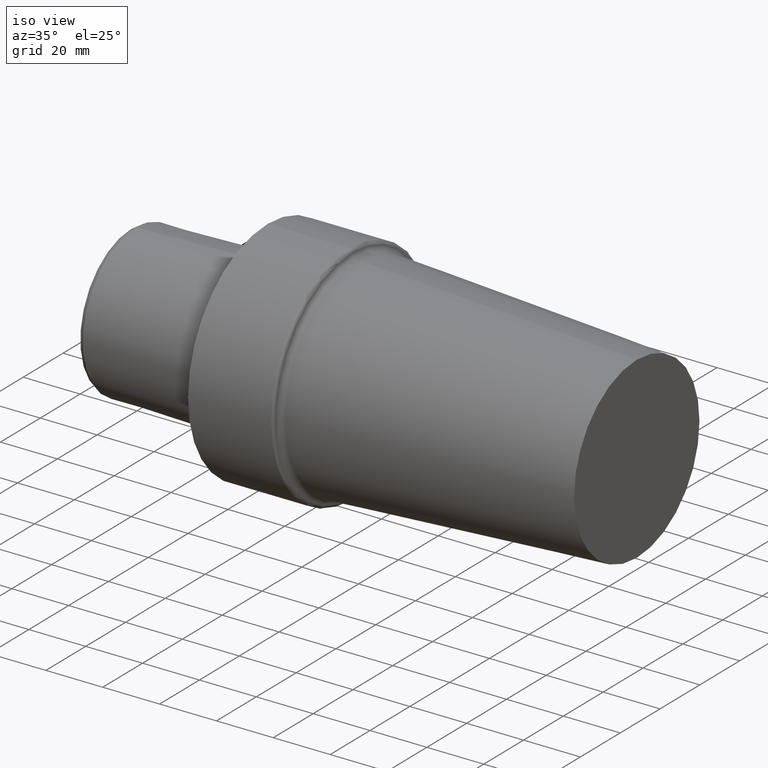
[diagram: clean part render]
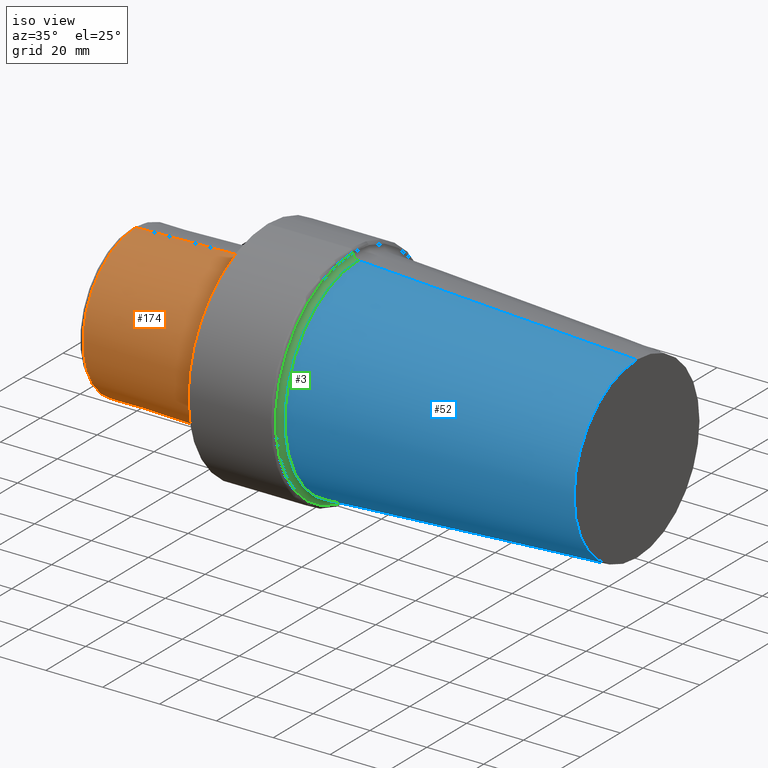
[diagram: same view with three faces highlighted in distinct colors, each labeled with its STEP entity id]
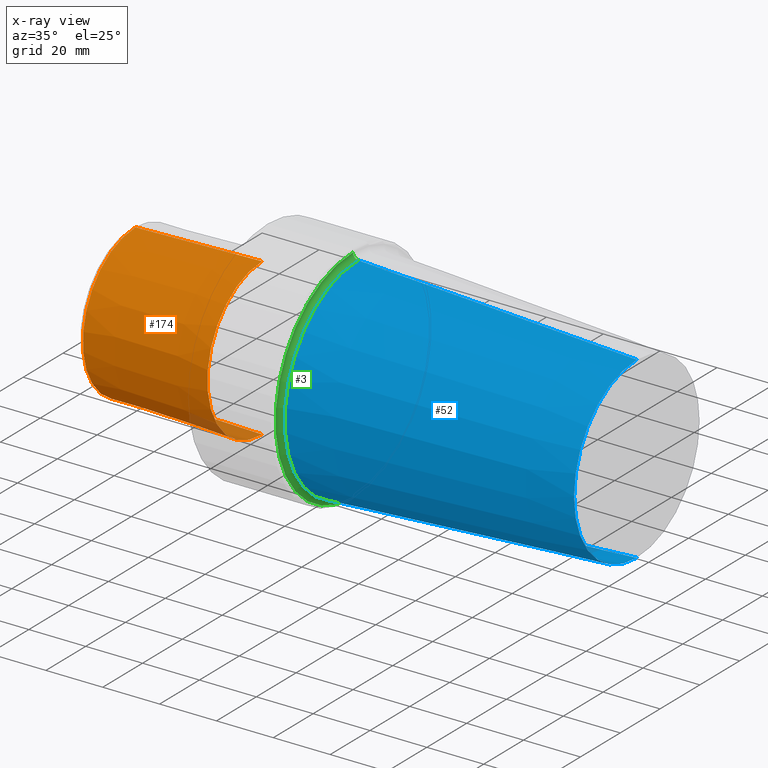
[diagram: x-ray of the same camera — body ghosted, the three highlighted faces saturated]
A machine part, iso view with three faces highlighted in distinct colors.
The next image is the same camera in x-ray (body ghosted, the three faces saturated) — at least one of them is partly hidden behind the body in this view.
Their STEP definitions:

[orange] entity #174 — the highlighted conical surface has half-angle 1.432 deg.
#8 = VERTEX_POINT ( 'NONE', #512 ) ;
#9 = CIRCLE ( 'NONE', #496, 26.41260027772084129 ) ;
#12 = EDGE_CURVE ( 'NONE', #8, #216, #371, .T. ) ;
#15 = CARTESIAN_POINT ( 'NONE',  ( -46.49999994987858543, 0.000000000000000000, -26.41260027772084129 ) ) ;
#17 = ORIENTED_EDGE ( 'NONE', *, *, #504, .F. ) ;
#30 = DIRECTION ( 'NONE',  ( -1.000000000000000000, 0.000000000000000000, 0.000000000000000000 ) ) ;
#43 = ORIENTED_EDGE ( 'NONE', *, *, #12, .T. ) ;
#67 = DIRECTION ( 'NONE',  ( 0.000000000000000000, 0.000000000000000000, 1.000000000000000000 ) ) ;
#75 = ORIENTED_EDGE ( 'NONE', *, *, #461, .F. ) ;
#130 = CARTESIAN_POINT ( 'NONE',  ( -1.940694415329066391, 0.000000000000000000, 27.52650806658465399 ) ) ;
#143 = CARTESIAN_POINT ( 'NONE',  ( -1.940694415329066391, 0.000000000000000000, 0.000000000000000000 ) ) ;
#168 = DIRECTION ( 'NONE',  ( 0.000000000000000000, 0.000000000000000000, -1.000000000000000000 ) ) ;
#174 = ADVANCED_FACE ( 'NONE', ( #292 ), #348, .T. ) ;
#175 = CARTESIAN_POINT ( 'NONE',  ( -1.940694415329066391, 0.000000000000000000, 0.000000000000000000 ) ) ;
#182 = CARTESIAN_POINT ( 'NONE',  ( -46.49999994987858543, 3.302817819135798828E-15, 26.41260027772084129 ) ) ;
#183 = VECTOR ( 'NONE', #479, 1000.000000000000114 ) ;
#203 = AXIS2_PLACEMENT_3D ( 'NONE', #175, #527, #168 ) ;
#216 = VERTEX_POINT ( 'NONE', #130 ) ;
#273 = LINE ( 'NONE', #363, #344 ) ;
#275 = DIRECTION ( 'NONE',  ( 0.9996876883616916398, 0.000000000000000000, -0.02499051296106793996 ) ) ;
#283 = LINE ( 'NONE', #401, #183 ) ;
#292 = FACE_OUTER_BOUND ( 'NONE', #342, .T. ) ;
#311 = AXIS2_PLACEMENT_3D ( 'NONE', #143, #314, #473 ) ;
#314 = DIRECTION ( 'NONE',  ( -1.000000000000000000, 0.000000000000000000, 0.000000000000000000 ) ) ;
#342 = EDGE_LOOP ( 'NONE', ( #75, #17, #531, #43 ) ) ;
#344 = VECTOR ( 'NONE', #275, 1000.000000000000114 ) ;
#346 = VERTEX_POINT ( 'NONE', #15 ) ;
#348 = CONICAL_SURFACE ( 'NONE', #203, 27.52650806658465399, 0.02499311489546479637 ) ;
#363 = CARTESIAN_POINT ( 'NONE',  ( -1.940694415329066391, 0.000000000000000000, -27.52650806658465399 ) ) ;
#371 = CIRCLE ( 'NONE', #311, 27.52650806658465399 ) ;
#374 = VERTEX_POINT ( 'NONE', #182 ) ;
#401 = CARTESIAN_POINT ( 'NONE',  ( -1.940694415329066391, 3.371024999544667893E-15, 27.52650806658465399 ) ) ;
#461 = EDGE_CURVE ( 'NONE', #374, #216, #283, .T. ) ;
#473 = DIRECTION ( 'NONE',  ( 0.000000000000000000, 0.000000000000000000, 1.000000000000000000 ) ) ;
#479 = DIRECTION ( 'NONE',  ( 0.9996876883616916398, 3.060455170682228743E-18, 0.02499051296106793996 ) ) ;
#496 = AXIS2_PLACEMENT_3D ( 'NONE', #519, #30, #67 ) ;
#504 = EDGE_CURVE ( 'NONE', #346, #374, #9, .T. ) ;
#512 = CARTESIAN_POINT ( 'NONE',  ( -1.940694415329066391, 3.371024999544667893E-15, -27.52650806658465399 ) ) ;
#519 = CARTESIAN_POINT ( 'NONE',  ( -46.49999994987858543, 0.000000000000000000, 0.000000000000000000 ) ) ;
#520 = EDGE_CURVE ( 'NONE', #346, #8, #273, .T. ) ;
#527 = DIRECTION ( 'NONE',  ( 1.000000000000000000, 0.000000000000000000, 0.000000000000000000 ) ) ;
#531 = ORIENTED_EDGE ( 'NONE', *, *, #520, .T. ) ;

[blue] entity #52 — the highlighted conical surface has half-angle 3.154 deg.
#10 = DIRECTION ( 'NONE',  ( -0.9984854159579920063, 0.000000000000000000, 0.05501703480918899991 ) ) ;
#14 = CIRCLE ( 'NONE', #319, 36.89586191702791496 ) ;
#33 = CARTESIAN_POINT ( 'NONE',  ( 129.8176255202773746, 0.000000000000000000, 0.000000000000000000 ) ) ;
#52 = ADVANCED_FACE ( 'NONE', ( #478 ), #118, .T. ) ;
#94 = DIRECTION ( 'NONE',  ( -1.000000000000000000, 0.000000000000000000, 0.000000000000000000 ) ) ;
#105 = DIRECTION ( 'NONE',  ( 0.000000000000000000, 0.000000000000000000, 1.000000000000000000 ) ) ;
#118 = CONICAL_SURFACE ( 'NONE', #467, 31.49999997253168615, 0.05504482762205797908 ) ;
#128 = CARTESIAN_POINT ( 'NONE',  ( 31.88996590016365218, 0.000000000000000000, 36.89586191702791496 ) ) ;
#135 = VERTEX_POINT ( 'NONE', #400 ) ;
#169 = VERTEX_POINT ( 'NONE', #288 ) ;
#180 = DIRECTION ( 'NONE',  ( 0.000000000000000000, 0.000000000000000000, 1.000000000000000000 ) ) ;
#190 = VECTOR ( 'NONE', #10, 1000.000000000000227 ) ;
#227 = VERTEX_POINT ( 'NONE', #128 ) ;
#253 = ORIENTED_EDGE ( 'NONE', *, *, #372, .F. ) ;
#267 = CARTESIAN_POINT ( 'NONE',  ( 31.88996590016365218, 0.000000000000000000, 0.000000000000000000 ) ) ;
#288 = CARTESIAN_POINT ( 'NONE',  ( 31.88996590016365218, 4.518439919847096007E-15, -36.89586191702791496 ) ) ;
#299 = CIRCLE ( 'NONE', #362, 31.49999997253168615 ) ;
#312 = VERTEX_POINT ( 'NONE', #470 ) ;
#319 = AXIS2_PLACEMENT_3D ( 'NONE', #267, #94, #180 ) ;
#324 = CARTESIAN_POINT ( 'NONE',  ( 129.8176255202773746, 3.857637413950260996E-15, -31.49999997253168615 ) ) ;
#356 = EDGE_CURVE ( 'NONE', #312, #227, #465, .T. ) ;
#362 = AXIS2_PLACEMENT_3D ( 'NONE', #33, #523, #483 ) ;
#372 = EDGE_CURVE ( 'NONE', #169, #227, #14, .T. ) ;
#397 = LINE ( 'NONE', #324, #454 ) ;
#399 = DIRECTION ( 'NONE',  ( -0.9984854159579920063, 6.737643557765180859E-18, -0.05501703480918899991 ) ) ;
#400 = CARTESIAN_POINT ( 'NONE',  ( 129.8176255202773746, 4.188038666898672585E-15, -31.49999997253168615 ) ) ;
#402 = CARTESIAN_POINT ( 'NONE',  ( 129.8176255202773746, 0.000000000000000000, 0.000000000000000000 ) ) ;
#454 = VECTOR ( 'NONE', #399, 1000.000000000000227 ) ;
#465 = LINE ( 'NONE', #514, #190 ) ;
#467 = AXIS2_PLACEMENT_3D ( 'NONE', #402, #484, #105 ) ;
#470 = CARTESIAN_POINT ( 'NONE',  ( 129.8176255202773746, 0.000000000000000000, 31.49999997253168615 ) ) ;
#478 = FACE_OUTER_BOUND ( 'NONE', #522, .T. ) ;
#483 = DIRECTION ( 'NONE',  ( 0.000000000000000000, 0.000000000000000000, 1.000000000000000000 ) ) ;
#484 = DIRECTION ( 'NONE',  ( -1.000000000000000000, 0.000000000000000000, 0.000000000000000000 ) ) ;
#488 = EDGE_CURVE ( 'NONE', #135, #169, #397, .T. ) ;
#491 = ORIENTED_EDGE ( 'NONE', *, *, #356, .T. ) ;
#502 = ORIENTED_EDGE ( 'NONE', *, *, #488, .F. ) ;
#514 = CARTESIAN_POINT ( 'NONE',  ( 129.8176255202773746, 0.000000000000000000, 31.49999997253168615 ) ) ;
#522 = EDGE_LOOP ( 'NONE', ( #502, #536, #491, #253 ) ) ;
#523 = DIRECTION ( 'NONE',  ( -1.000000000000000000, 0.000000000000000000, 0.000000000000000000 ) ) ;
#532 = EDGE_CURVE ( 'NONE', #135, #312, #299, .T. ) ;
#536 = ORIENTED_EDGE ( 'NONE', *, *, #532, .T. ) ;

[green] entity #3 — the highlighted toroidal blend (fillet) surface has major radius 38.8928 mm and minor (blend) radius 2 mm.
#3 = ADVANCED_FACE ( 'NONE', ( #509 ), #198, .F. ) ;
#14 = CIRCLE ( 'NONE', #319, 36.89586191702791496 ) ;
#21 = AXIS2_PLACEMENT_3D ( 'NONE', #228, #99, #391 ) ;
#22 = DIRECTION ( 'NONE',  ( 0.000000000000000000, 0.000000000000000000, -1.000000000000000000 ) ) ;
#56 = AXIS2_PLACEMENT_3D ( 'NONE', #207, #330, #525 ) ;
#81 = ORIENTED_EDGE ( 'NONE', *, *, #91, .T. ) ;
#91 = EDGE_CURVE ( 'NONE', #281, #169, #151, .T. ) ;
#94 = DIRECTION ( 'NONE',  ( -1.000000000000000000, 0.000000000000000000, 0.000000000000000000 ) ) ;
#99 = DIRECTION ( 'NONE',  ( -1.000000000000000000, 0.000000000000000000, 0.000000000000000000 ) ) ;
#127 = CIRCLE ( 'NONE', #226, 38.89283274499099718 ) ;
#128 = CARTESIAN_POINT ( 'NONE',  ( 31.88996590016365218, 0.000000000000000000, 36.89586191702791496 ) ) ;
#131 = EDGE_LOOP ( 'NONE', ( #340, #81, #139, #444 ) ) ;
#139 = ORIENTED_EDGE ( 'NONE', *, *, #372, .T. ) ;
#151 = CIRCLE ( 'NONE', #56, 1.999999997960001608 ) ;
#169 = VERTEX_POINT ( 'NONE', #288 ) ;
#180 = DIRECTION ( 'NONE',  ( 0.000000000000000000, 0.000000000000000000, 1.000000000000000000 ) ) ;
#192 = CARTESIAN_POINT ( 'NONE',  ( 29.99999997209141611, 0.000000000000000000, 38.89283274593847750 ) ) ;
#195 = DIRECTION ( 'NONE',  ( -1.000000000000000000, 0.000000000000000000, 0.000000000000000000 ) ) ;
#198 = TOROIDAL_SURFACE ( 'NONE', #21, 38.89283274688592229, 1.999999997959999831 ) ;
#207 = CARTESIAN_POINT ( 'NONE',  ( 31.99999997005141594, 4.762998313324717194E-15, -38.89283274688592229 ) ) ;
#226 = AXIS2_PLACEMENT_3D ( 'NONE', #317, #195, #239 ) ;
#227 = VERTEX_POINT ( 'NONE', #128 ) ;
#228 = CARTESIAN_POINT ( 'NONE',  ( 31.99999997005141594, 0.000000000000000000, 0.000000000000000000 ) ) ;
#239 = DIRECTION ( 'NONE',  ( 0.000000000000000000, 0.000000000000000000, 1.000000000000000000 ) ) ;
#267 = CARTESIAN_POINT ( 'NONE',  ( 31.88996590016365218, 0.000000000000000000, 0.000000000000000000 ) ) ;
#274 = AXIS2_PLACEMENT_3D ( 'NONE', #393, #403, #22 ) ;
#281 = VERTEX_POINT ( 'NONE', #385 ) ;
#288 = CARTESIAN_POINT ( 'NONE',  ( 31.88996590016365218, 4.518439919847096007E-15, -36.89586191702791496 ) ) ;
#302 = VERTEX_POINT ( 'NONE', #192 ) ;
#317 = CARTESIAN_POINT ( 'NONE',  ( 29.99999997209141611, 0.000000000000000000, 0.000000000000000000 ) ) ;
#319 = AXIS2_PLACEMENT_3D ( 'NONE', #267, #94, #180 ) ;
#330 = DIRECTION ( 'NONE',  ( 0.000000000000000000, 1.000000000000000000, 1.224646799147355919E-16 ) ) ;
#340 = ORIENTED_EDGE ( 'NONE', *, *, #515, .F. ) ;
#372 = EDGE_CURVE ( 'NONE', #169, #227, #14, .T. ) ;
#385 = CARTESIAN_POINT ( 'NONE',  ( 29.99999997209141611, 4.762998313208685221E-15, -38.89283274593847750 ) ) ;
#391 = DIRECTION ( 'NONE',  ( 0.000000000000000000, 0.000000000000000000, 1.000000000000000000 ) ) ;
#393 = CARTESIAN_POINT ( 'NONE',  ( 31.99999997005141594, 0.000000000000000000, 38.89283274688592229 ) ) ;
#403 = DIRECTION ( 'NONE',  ( 0.000000000000000000, -1.000000000000000000, 0.000000000000000000 ) ) ;
#411 = CIRCLE ( 'NONE', #274, 1.999999997960001608 ) ;
#444 = ORIENTED_EDGE ( 'NONE', *, *, #476, .F. ) ;
#476 = EDGE_CURVE ( 'NONE', #302, #227, #411, .T. ) ;
#509 = FACE_OUTER_BOUND ( 'NONE', #131, .T. ) ;
#515 = EDGE_CURVE ( 'NONE', #281, #302, #127, .T. ) ;
#525 = DIRECTION ( 'NONE',  ( 0.000000000000000000, -1.224646799147354193E-16, 1.000000000000000000 ) ) ;